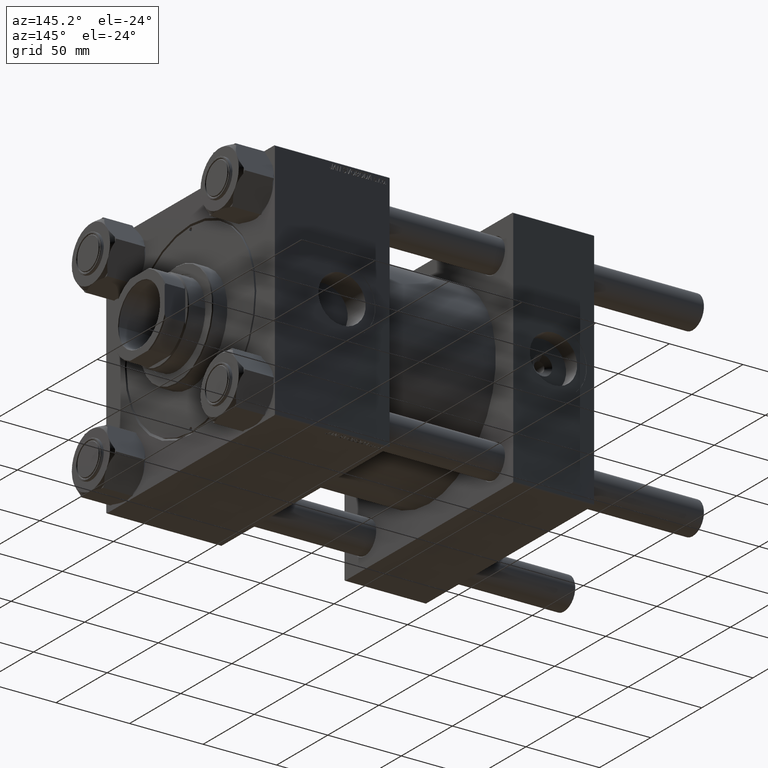
[diagram: clean part render]
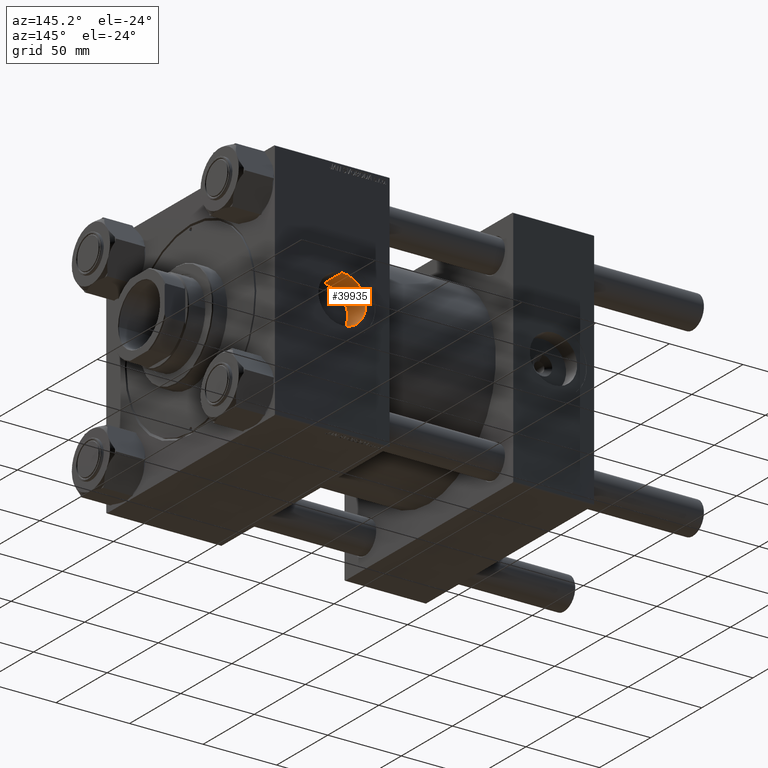
[diagram: same view with one face highlighted and labeled with its STEP entity id]
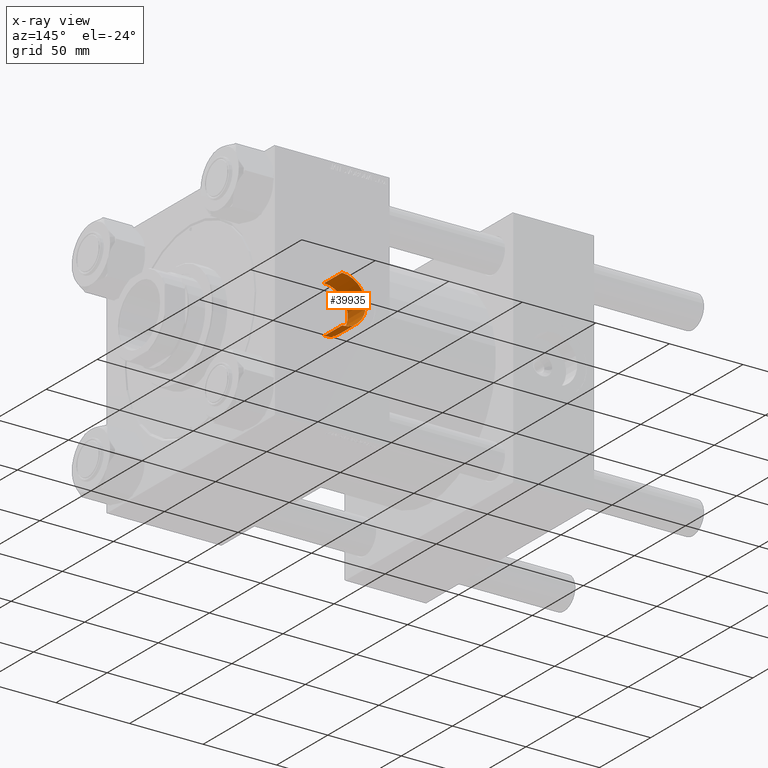
[diagram: x-ray of the same camera — body ghosted, the highlighted face saturated]
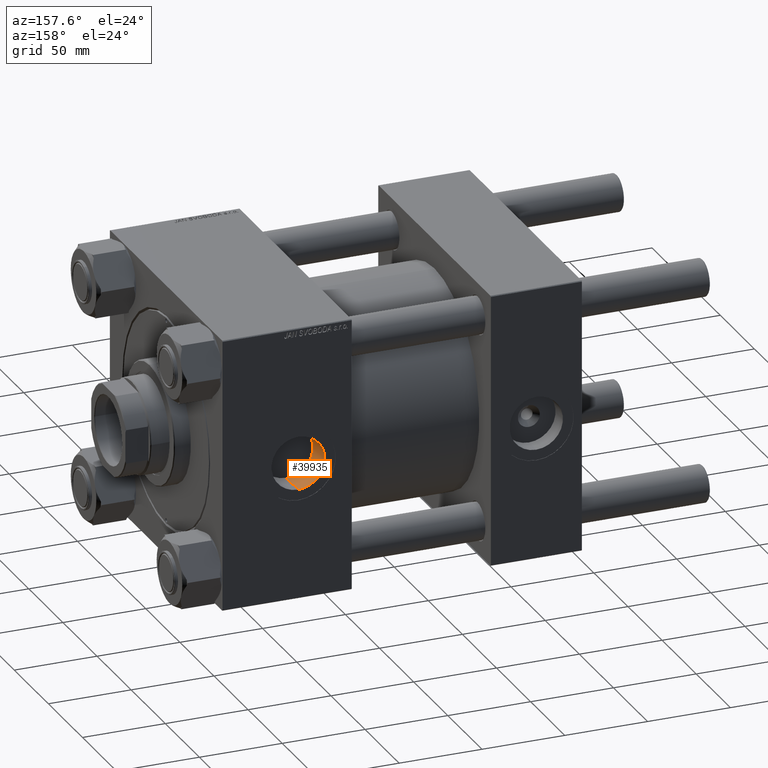
[diagram: same view with one face highlighted and labeled with its STEP entity id]
A machine part, auxiliary view. The second image highlights one B-rep face of the part: STEP entity #39935.
The next image is the same camera in x-ray: the body ghosted, the highlighted face saturated — about 0% of this face is hidden behind the body in this view.
A second angle (auxiliary view) of the same face is appended — the face is thin or edge-on in the first view.
In plain terms, the highlighted cylindrical surface (edge-blend (fillet) strip) has radius 16.12 mm, axis along (0, 1, 0).
Its self-contained STEP definition (entity closure, byte-faithful):
#3546 = LINE ( 'NONE', #50235, #8369 ) ;
#3719 = DIRECTION ( 'NONE',  ( 0.000000000000000000, 1.000000000000000000, 0.000000000000000000 ) ) ;
#8369 = VECTOR ( 'NONE', #15258, 1000.000000000000000 ) ;
#8785 = EDGE_CURVE ( 'NONE', #33302, #10864, #3546, .T. ) ;
#9803 = CIRCLE ( 'NONE', #38307, 16.11999999999998678 ) ;
#10062 = CARTESIAN_POINT ( 'NONE',  ( 171.2400000000000091, 64.70000000000001705, 16.11999999999998678 ) ) ;
#10243 = EDGE_CURVE ( 'NONE', #22108, #33302, #24698, .T. ) ;
#10864 = VERTEX_POINT ( 'NONE', #40782 ) ;
#13733 = CARTESIAN_POINT ( 'NONE',  ( 171.2400000000000091, 64.70000000000001705, 0.000000000000000000 ) ) ;
#15258 = DIRECTION ( 'NONE',  ( -0.000000000000000000, 1.000000000000000000, -0.000000000000000000 ) ) ;
#17159 = ORIENTED_EDGE ( 'NONE', *, *, #8785, .F. ) ;
#17564 = CYLINDRICAL_SURFACE ( 'NONE', #26982, 16.11999999999998678 ) ;
#18169 = ORIENTED_EDGE ( 'NONE', *, *, #31606, .T. ) ;
#18232 = DIRECTION ( 'NONE',  ( 0.000000000000000000, 0.000000000000000000, 1.000000000000000000 ) ) ;
#19247 = CARTESIAN_POINT ( 'NONE',  ( 171.2400000000000091, 82.30000000000001137, 0.000000000000000000 ) ) ;
#19464 = LINE ( 'NONE', #35547, #28511 ) ;
#19878 = VERTEX_POINT ( 'NONE', #23602 ) ;
#20606 = CARTESIAN_POINT ( 'NONE',  ( 171.2400000000000091, 64.70000000000001705, -16.11999999999998678 ) ) ;
#21878 = CARTESIAN_POINT ( 'NONE',  ( 171.2400000000000091, 64.70000000000001705, 0.000000000000000000 ) ) ;
#22108 = VERTEX_POINT ( 'NONE', #20606 ) ;
#23538 = DIRECTION ( 'NONE',  ( -0.000000000000000000, 1.000000000000000000, -0.000000000000000000 ) ) ;
#23602 = CARTESIAN_POINT ( 'NONE',  ( 171.2400000000000091, 82.30000000000001137, -16.11999999999998678 ) ) ;
#24698 = CIRCLE ( 'NONE', #32037, 16.11999999999998678 ) ;
#25736 = DIRECTION ( 'NONE',  ( 0.000000000000000000, 0.000000000000000000, 1.000000000000000000 ) ) ;
#26982 = AXIS2_PLACEMENT_3D ( 'NONE', #21878, #33645, #25736 ) ;
#28511 = VECTOR ( 'NONE', #23538, 1000.000000000000000 ) ;
#31606 = EDGE_CURVE ( 'NONE', #19878, #10864, #9803, .T. ) ;
#32037 = AXIS2_PLACEMENT_3D ( 'NONE', #13733, #33884, #44860 ) ;
#33302 = VERTEX_POINT ( 'NONE', #10062 ) ;
#33645 = DIRECTION ( 'NONE',  ( -0.000000000000000000, 1.000000000000000000, -0.000000000000000000 ) ) ;
#33884 = DIRECTION ( 'NONE',  ( 0.000000000000000000, 1.000000000000000000, 0.000000000000000000 ) ) ;
#35547 = CARTESIAN_POINT ( 'NONE',  ( 171.2400000000000091, 64.70000000000001705, -16.11999999999998678 ) ) ;
#36352 = ORIENTED_EDGE ( 'NONE', *, *, #10243, .F. ) ;
#36500 = EDGE_CURVE ( 'NONE', #22108, #19878, #19464, .T. ) ;
#38307 = AXIS2_PLACEMENT_3D ( 'NONE', #19247, #3719, #18232 ) ;
#39935 = ADVANCED_FACE ( 'NONE', ( #45121 ), #17564, .F. ) ;
#40782 = CARTESIAN_POINT ( 'NONE',  ( 171.2400000000000091, 82.30000000000001137, 16.11999999999998678 ) ) ;
#41810 = EDGE_LOOP ( 'NONE', ( #36352, #42931, #18169, #17159 ) ) ;
#42931 = ORIENTED_EDGE ( 'NONE', *, *, #36500, .T. ) ;
#44860 = DIRECTION ( 'NONE',  ( 0.000000000000000000, 0.000000000000000000, 1.000000000000000000 ) ) ;
#45121 = FACE_OUTER_BOUND ( 'NONE', #41810, .T. ) ;
#50235 = CARTESIAN_POINT ( 'NONE',  ( 171.2400000000000091, 64.70000000000001705, 16.11999999999998678 ) ) ;